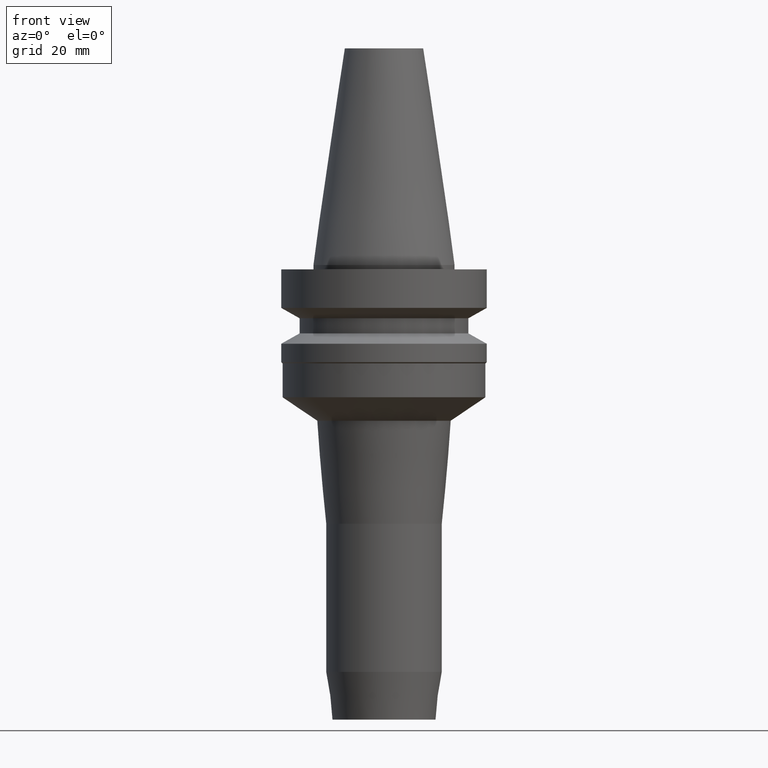
[diagram: clean part render]
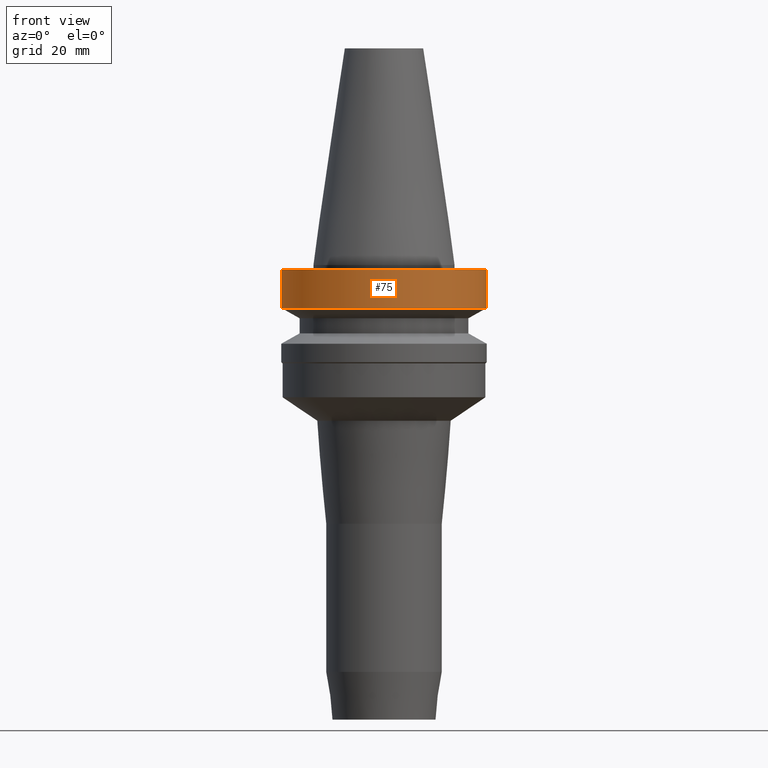
[diagram: same view with one face highlighted and labeled with its STEP entity id]
A machine part, front view. The second image highlights one B-rep face of the part: STEP entity #75.
In plain terms, the highlighted cylindrical surface (bore or boss wall) has radius 23 mm, axis along (0, 0, -1).
Its self-contained STEP definition (entity closure, byte-faithful):
#65=EDGE_CURVE('Unnamed[1]',#167,#167,#168,.T.);
#72=EDGE_CURVE('Unnamed[1]',#178,#178,#179,.T.);
#75=ADVANCED_FACE('Unnamed[1]',(#182,#183),#184,.T.);
#167=VERTEX_POINT('',#304);
#168=CIRCLE('',#305,23.0);
#178=VERTEX_POINT('',#318);
#179=CIRCLE('',#319,23.0);
#182=FACE_BOUND('',#323,.T.);
#183=FACE_BOUND('',#324,.T.);
#184=CYLINDRICAL_SURFACE('',#325,23.0);
#304=CARTESIAN_POINT('',(5.87830463590729E-016,23.0,-9.59999999999999));
#305=AXIS2_PLACEMENT_3D('',#457,#458,#459);
#318=CARTESIAN_POINT('',(6.12323399573674E-017,23.0,-0.999999999999997));
#319=AXIS2_PLACEMENT_3D('',#469,#470,#471);
#323=EDGE_LOOP('',(#473));
#324=EDGE_LOOP('',(#474));
#325=AXIS2_PLACEMENT_3D('',#475,#476,#477);
#457=CARTESIAN_POINT('',(5.87830463590729E-016,1.17566092718146E-015,-9.59999999999999));
#458=DIRECTION('',(6.12323399573677E-017,1.22464679914735E-016,-1.0));
#459=DIRECTION('',(-1.23259516440783E-032,1.0,1.22464679914735E-016));
#469=CARTESIAN_POINT('',(6.12323399573677E-017,1.22464679914735E-016,-1.0));
#470=DIRECTION('',(6.12323399573677E-017,1.22464679914735E-016,-1.0));
#471=DIRECTION('',(-1.23259516440783E-032,1.0,1.22464679914735E-016));
#473=ORIENTED_EDGE('',*,*,#65,.F.);
#474=ORIENTED_EDGE('',*,*,#72,.T.);
#475=CARTESIAN_POINT('',(3.24531401774048E-016,6.49062803548097E-016,-5.3));
#476=DIRECTION('',(6.12323399573677E-017,1.22464679914735E-016,-1.0));
#477=DIRECTION('',(-1.23259516440783E-032,1.0,1.22464679914735E-016));